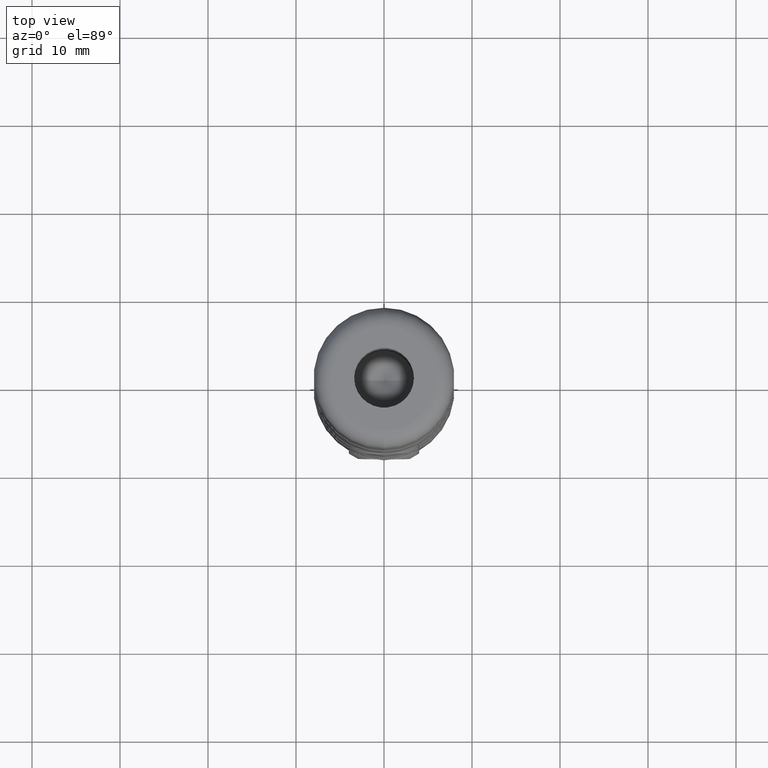
[diagram: clean part render]
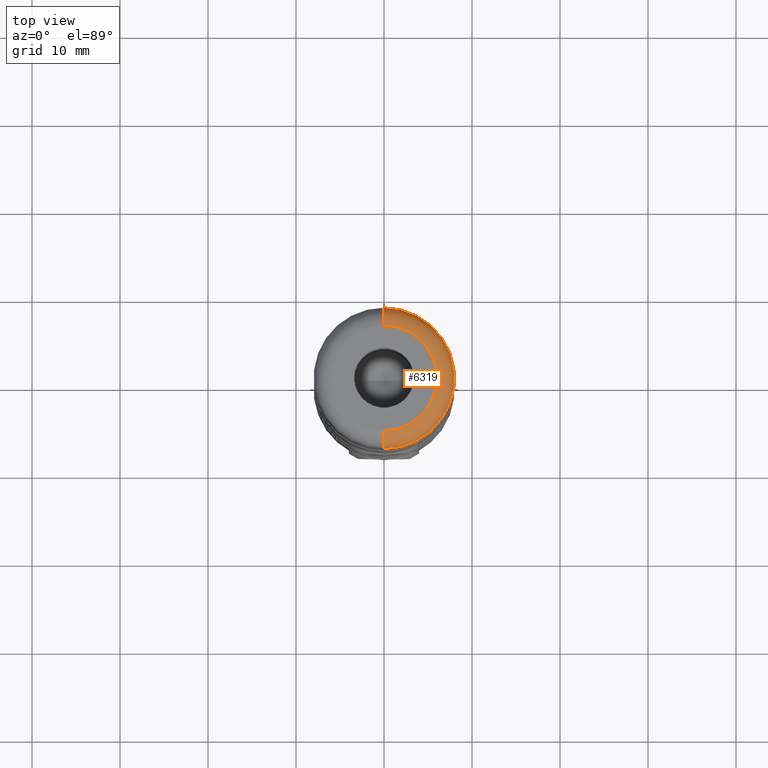
[diagram: same view with one face highlighted and labeled with its STEP entity id]
A machine part, top view. The second image highlights one B-rep face of the part: STEP entity #6319.
In plain terms, the highlighted toroidal blend (fillet) surface has major radius 6 mm and minor (blend) radius 2 mm.
Its self-contained STEP definition (entity closure, byte-faithful):
#20 = VERTEX_POINT ( 'NONE', #1188 ) ;
#525 = EDGE_CURVE ( 'NONE', #15053, #20, #1766, .T. ) ;
#1188 = CARTESIAN_POINT ( 'NONE',  ( 0.0000000000000000000, -7.999999999999989300, 38.00000000000000000 ) ) ;
#1766 = CIRCLE ( 'NONE', #8239, 2.000000000000000000 ) ;
#1887 = DIRECTION ( 'NONE',  ( 0.0000000000000000000, 0.0000000000000000000, 1.000000000000000000 ) ) ;
#2045 = DIRECTION ( 'NONE',  ( 0.0000000000000000000, 1.000000000000000000, 0.0000000000000000000 ) ) ;
#3034 = DIRECTION ( 'NONE',  ( 0.0000000000000000000, -5.922595424346115800E-017, -1.000000000000000000 ) ) ;
#3360 = EDGE_CURVE ( 'NONE', #15053, #6320, #16077, .T. ) ;
#3931 = AXIS2_PLACEMENT_3D ( 'NONE', #7717, #6341, #9039 ) ;
#4649 = CIRCLE ( 'NONE', #13168, 2.000000000000001800 ) ;
#4710 = CARTESIAN_POINT ( 'NONE',  ( 0.0000000000000000000, 4.814824860968089600E-032, 40.00000000000000000 ) ) ;
#4731 = EDGE_CURVE ( 'NONE', #11016, #20, #14100, .T. ) ;
#5455 = ORIENTED_EDGE ( 'NONE', *, *, #17018, .F. ) ;
#6216 = CARTESIAN_POINT ( 'NONE',  ( 0.0000000000000000000, 5.999999999999989300, 40.00000000000000000 ) ) ;
#6267 = DIRECTION ( 'NONE',  ( -1.224646799147353500E-016, 1.000000000000000000, 0.0000000000000000000 ) ) ;
#6319 = ADVANCED_FACE ( 'NONE', ( #10608 ), #6516, .T. ) ;
#6320 = VERTEX_POINT ( 'NONE', #6216 ) ;
#6341 = DIRECTION ( 'NONE',  ( 0.0000000000000000000, -5.922595424346115800E-017, -1.000000000000000000 ) ) ;
#6516 = TOROIDAL_SURFACE ( 'NONE', #3931, 5.999999999999989300, 2.000000000000000000 ) ;
#6598 = ORIENTED_EDGE ( 'NONE', *, *, #525, .T. ) ;
#7039 = CARTESIAN_POINT ( 'NONE',  ( 9.797174393178813800E-016, 7.999999999999989300, 38.00000000000000000 ) ) ;
#7408 = DIRECTION ( 'NONE',  ( -0.0000000000000000000, 5.922595424346115800E-017, 1.000000000000000000 ) ) ;
#7717 = CARTESIAN_POINT ( 'NONE',  ( 0.0000000000000000000, -1.184519084869223900E-016, 38.00000000000000000 ) ) ;
#8239 = AXIS2_PLACEMENT_3D ( 'NONE', #13102, #14488, #6267 ) ;
#8591 = CARTESIAN_POINT ( 'NONE',  ( 0.0000000000000000000, -1.184519084869224400E-016, 38.00000000000000000 ) ) ;
#9039 = DIRECTION ( 'NONE',  ( 0.0000000000000000000, 1.000000000000000000, -5.922595424346115800E-017 ) ) ;
#9878 = AXIS2_PLACEMENT_3D ( 'NONE', #8591, #3034, #15304 ) ;
#9997 = AXIS2_PLACEMENT_3D ( 'NONE', #4710, #7408, #2045 ) ;
#10608 = FACE_OUTER_BOUND ( 'NONE', #16004, .T. ) ;
#11016 = VERTEX_POINT ( 'NONE', #7039 ) ;
#11377 = DIRECTION ( 'NONE',  ( -1.000000000000000000, 0.0000000000000000000, -0.0000000000000000000 ) ) ;
#11804 = ORIENTED_EDGE ( 'NONE', *, *, #4731, .F. ) ;
#12536 = ORIENTED_EDGE ( 'NONE', *, *, #3360, .F. ) ;
#13102 = CARTESIAN_POINT ( 'NONE',  ( 7.347880794884106900E-016, -5.999999999999989300, 38.00000000000000000 ) ) ;
#13168 = AXIS2_PLACEMENT_3D ( 'NONE', #15648, #11377, #1887 ) ;
#13939 = CARTESIAN_POINT ( 'NONE',  ( 8.572527594031460400E-016, -5.999999999999989300, 40.00000000000000000 ) ) ;
#14100 = CIRCLE ( 'NONE', #9878, 7.999999999999989300 ) ;
#14488 = DIRECTION ( 'NONE',  ( 1.000000000000000000, 1.224646799147353200E-016, -7.253087529070231300E-033 ) ) ;
#15053 = VERTEX_POINT ( 'NONE', #13939 ) ;
#15304 = DIRECTION ( 'NONE',  ( 0.0000000000000000000, 1.000000000000000000, 0.0000000000000000000 ) ) ;
#15648 = CARTESIAN_POINT ( 'NONE',  ( 0.0000000000000000000, 5.999999999999989300, 38.00000000000000000 ) ) ;
#16004 = EDGE_LOOP ( 'NONE', ( #12536, #6598, #11804, #5455 ) ) ;
#16077 = CIRCLE ( 'NONE', #9997, 5.999999999999989300 ) ;
#17018 = EDGE_CURVE ( 'NONE', #6320, #11016, #4649, .T. ) ;